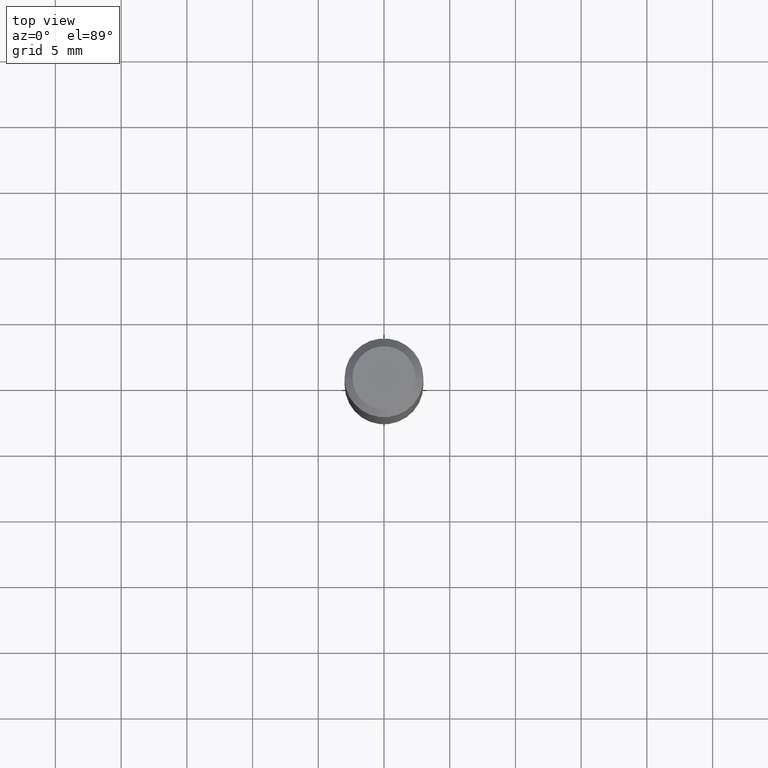
[diagram: clean part render]
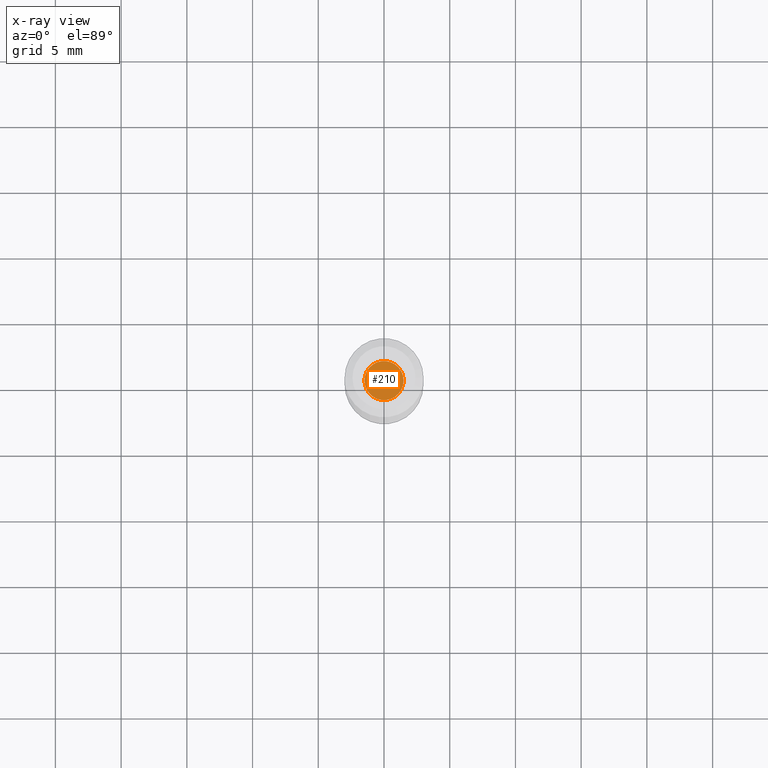
[diagram: x-ray — body ghosted, one internal face saturated and labeled with its STEP entity id]
A machine part, top view, then the same camera in x-ray: the body is ghosted and one INTERNAL B-rep face — a face not visible from any outside direction — is saturated and labeled: STEP entity #210.
In plain terms, the highlighted planar face has unit normal (-0, 0, 1).
Its self-contained STEP definition (entity closure, byte-faithful):
#25 = CARTESIAN_POINT ( 'NONE',  ( 1.250612747483078623E-29, -1.785543556684384453E-15, -0.5113999999999998547 ) ) ;
#40 = CARTESIAN_POINT ( 'NONE',  ( 1.250612747483078623E-29, -1.785543556684384453E-15, -0.5113999999999998547 ) ) ;
#61 = CARTESIAN_POINT ( 'NONE',  ( 1.250612747483078623E-29, -1.785543556684384453E-15, -0.5113999999999998547 ) ) ;
#69 = AXIS2_PLACEMENT_3D ( 'NONE', #61, #103, #307 ) ;
#75 = EDGE_CURVE ( 'NONE', #488, #353, #469, .T. ) ;
#103 = DIRECTION ( 'NONE',  ( -2.438088387897960049E-29, 3.491481338843145188E-15, 1.000000000000000000 ) ) ;
#149 = CARTESIAN_POINT ( 'NONE',  ( 0.05855000000000004645, -2.194396021462915183E-15, -0.5113999999999998547 ) ) ;
#171 = ORIENTED_EDGE ( 'NONE', *, *, #75, .F. ) ;
#198 = CARTESIAN_POINT ( 'NONE',  ( -0.05855000000000004645, -1.366871557722736433E-15, -0.5113999999999998547 ) ) ;
#210 = ADVANCED_FACE ( 'NONE', ( #302 ), #388, .F. ) ;
#217 = EDGE_LOOP ( 'NONE', ( #239, #171 ) ) ;
#230 = EDGE_CURVE ( 'NONE', #353, #488, #504, .T. ) ;
#239 = ORIENTED_EDGE ( 'NONE', *, *, #230, .F. ) ;
#271 = DIRECTION ( 'NONE',  ( -2.445468806185136597E-29, 3.491481338843145583E-15, 1.000000000000000000 ) ) ;
#302 = FACE_OUTER_BOUND ( 'NONE', #217, .T. ) ;
#307 = DIRECTION ( 'NONE',  ( 1.000000000000000000, -6.982962677686265922E-15, 4.876176775795935793E-29 ) ) ;
#329 = DIRECTION ( 'NONE',  ( -2.445468806185136597E-29, 3.491481338843145583E-15, 1.000000000000000000 ) ) ;
#345 = DIRECTION ( 'NONE',  ( 1.000000000000000000, -6.982962677686262766E-15, 0.000000000000000000 ) ) ;
#353 = VERTEX_POINT ( 'NONE', #149 ) ;
#388 = PLANE ( 'NONE',  #69 ) ;
#440 = DIRECTION ( 'NONE',  ( 1.000000000000000000, -6.982962677686262766E-15, 0.000000000000000000 ) ) ;
#459 = AXIS2_PLACEMENT_3D ( 'NONE', #40, #329, #440 ) ;
#469 = CIRCLE ( 'NONE', #459, 0.05855000000000004645 ) ;
#476 = AXIS2_PLACEMENT_3D ( 'NONE', #25, #271, #345 ) ;
#488 = VERTEX_POINT ( 'NONE', #198 ) ;
#504 = CIRCLE ( 'NONE', #476, 0.05855000000000004645 ) ;